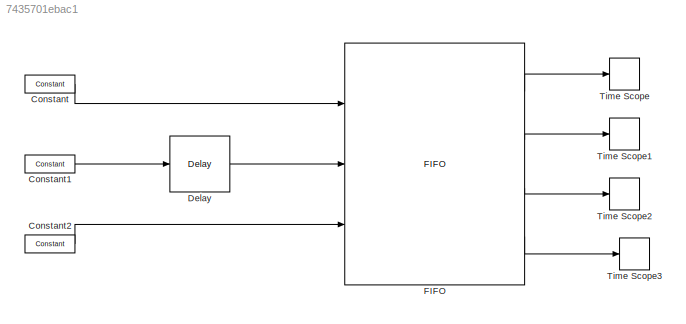
MODEL slx_7435701ebac1
KIND model
CONFIG AbsTol = auto
CONFIG FixedStep = auto
CONFIG InitFcn = %% DSPBuilder Start\nalt_dspbuilder_update_model(bdroot)\n%% DSPBuilder End\n
CONFIG MaxStep = auto
CONFIG MinStep = auto
CONFIG RelTol = 1e-3
CONFIG SampleTimeConstraint = Unconstrained
CONFIG Solver = ode45
CONFIG SolverMode = Auto
CONFIG SolverName = ode45
CONFIG StartTime = 0.0
CONFIG StopTime = 10.0
BLOCK [Reference] Constant  REF=allblocks_alteradspbuilder2/Constant
  BusType = Unsigned Integer
  Ports = [0, 1]
  SourceBlock = allblocks_alteradspbuilder2/Constant
  SourceType = Constant AlteraBlockset
  SpecifyClock = off
  allowFloatingPointOverride = on
  bwl = 8
  bwr = 0
  logFile = <userpath>\Desktop\final_sift_fpga\tb_fifo\fifo_Constant.fixedpointlog
  logOutputs = off
  mask_cst = 5
  roundMode = Truncate
  satMode = Wrap
BLOCK [Reference] Constant1  REF=allblocks_alteradspbuilder2/Constant
  BusType = Single Bit
  Ports = [0, 1]
  SourceBlock = allblocks_alteradspbuilder2/Constant
  SourceType = Constant AlteraBlockset
  SpecifyClock = off
  allowFloatingPointOverride = on
  bwl = 8
  bwr = 0
  logFile = <userpath>\Desktop\final_sift_fpga\tb_fifo\fifo_Constant1.fixedpointlog
  logOutputs = off
  mask_cst = 1
  roundMode = Truncate
  satMode = Wrap
BLOCK [Reference] Constant2  REF=allblocks_alteradspbuilder2/Constant
  BusType = Single Bit
  Ports = [0, 1]
  SourceBlock = allblocks_alteradspbuilder2/Constant
  SourceType = Constant AlteraBlockset
  SpecifyClock = off
  allowFloatingPointOverride = on
  bwl = 8
  bwr = 0
  logFile = <userpath>\Desktop\final_sift_fpga\tb_fifo\fifo_Constant2.fixedpointlog
  logOutputs = off
  mask_cst = 1
  roundMode = Truncate
  satMode = Wrap
BLOCK [Reference] Delay  REF=allblocks_alteradspbuilder2/Delay
  ClockPhase = 1
  Ports = [1, 1]
  SourceBlock = allblocks_alteradspbuilder2/Delay
  SourceType = Delay AlteraBlockset
  allowFloatingPointOverride = on
  logFile = <userpath>\Desktop\final_sift_fpga\tb_fifo\fifo_Delay.fixedpointlog
  logOutputs = off
  pipeline = 5
  pipeline_display = 5
  reset_value = 1
  use_ena = off
  use_init = off
  use_sclr = off
BLOCK [Reference] FIFO  REF=allblocks_alteradspbuilder2/FIFO
  BusType = Unsigned Integer
  Ports = [3, 4]
  SourceBlock = allblocks_alteradspbuilder2/FIFO
  SourceType = FIFO AlteraBlockset
  allowFloatingPointOverride = on
  bwl = 8
  bwr = 0
  logFile = <userpath>\Desktop\final_sift_fpga\tb_fifo\fifo_FIFO%3A%3Aq.fixedpointlog,<userpath>\Desktop\final_sift_fpga\tb_fifo\fifo_FIFO%3A%3Afull.fixedpointlog,<userpath>\Desktop\final_sift_fpga\tb_fifo\fifo_FIFO%3A%3Aempty.fixedpointlog,<userpath>\Desktop\final_sift_fpga\tb_fifo\fifo_FIFO%3A%3Ausedw.fixedpointlog,
  logOutputs = off
  numwords = 64
  ram_type = AUTO
  showahead_mode = off
  use_les_only = off
  use_sclr = off
BLOCK [TimeScope] Time Scope
  DefaultConfigurationName = spbscopes.TimeScopeBlockCfg
  NumInputPorts = 1
  Ports = [1]
  ScopeSpecificationString = spbscopes.TimeScopeBlockCfg('CurrentConfiguration', extmgr.ConfigurationSet(extmgr.Configuration('Core','General UI',true),extmgr.Configuration('Core','Source UI',true),extmgr.Configuration('Sources','WiredSimulink',true),extmgr.Configuration('Visuals','Time Domain',true,'DisplayPropertyDefaults',struct('MinYLimReal','-0.625','MaxYLimReal','5.625','YLabelReal','Amplitude','MinYLimMag','0','MaxYLim...<+1329ch>
  UserDataPersistent = on
BLOCK [TimeScope] Time Scope1
  DefaultConfigurationName = spbscopes.TimeScopeBlockCfg
  NumInputPorts = 1
  Ports = [1]
  ScopeSpecificationString = spbscopes.TimeScopeBlockCfg('CurrentConfiguration', extmgr.ConfigurationSet(extmgr.Configuration('Core','General UI',true),extmgr.Configuration('Core','Source UI',true),extmgr.Configuration('Sources','WiredSimulink',true,'DataLoggingVariableName','ScopeData1'),extmgr.Configuration('Visuals','Time Domain',true,'DisplayPropertyDefaults',struct('MinYLimReal','-1','MaxYLimReal','1','YLabelReal','Ampli...<+1345ch>
  UserDataPersistent = on
BLOCK [TimeScope] Time Scope2
  DefaultConfigurationName = spbscopes.TimeScopeBlockCfg
  NumInputPorts = 1
  Ports = [1]
  ScopeSpecificationString = spbscopes.TimeScopeBlockCfg('CurrentConfiguration', extmgr.ConfigurationSet(extmgr.Configuration('Core','General UI',true),extmgr.Configuration('Core','Source UI',true),extmgr.Configuration('Sources','WiredSimulink',true,'DataLoggingVariableName','ScopeData2'),extmgr.Configuration('Visuals','Time Domain',true,'DisplayPropertyDefaults',struct('MinYLimReal','-0.125','MaxYLimReal','1.125','YLabelReal...<+1369ch>
  UserDataPersistent = on
BLOCK [TimeScope] Time Scope3
  DefaultConfigurationName = spbscopes.TimeScopeBlockCfg
  NumInputPorts = 1
  Ports = [1]
  ScopeSpecificationString = spbscopes.TimeScopeBlockCfg('CurrentConfiguration', extmgr.ConfigurationSet(extmgr.Configuration('Core','General UI',true),extmgr.Configuration('Core','Source UI',true),extmgr.Configuration('Sources','WiredSimulink',true,'DataLoggingVariableName','ScopeData3'),extmgr.Configuration('Visuals','Time Domain',true,'DisplayPropertyDefaults',struct('MinYLimReal','-0.625','MaxYLimReal','5.625','YLabelReal...<+1369ch>
  UserDataPersistent = on
LINE Constant1:1 -> Delay:1
LINE Constant2:1 -> FIFO:3
LINE Constant:1 -> FIFO:1
LINE Delay:1 -> FIFO:2
LINE FIFO:1 -> Time Scope:1
LINE FIFO:2 -> Time Scope1:1
LINE FIFO:3 -> Time Scope2:1
LINE FIFO:4 -> Time Scope3:1
